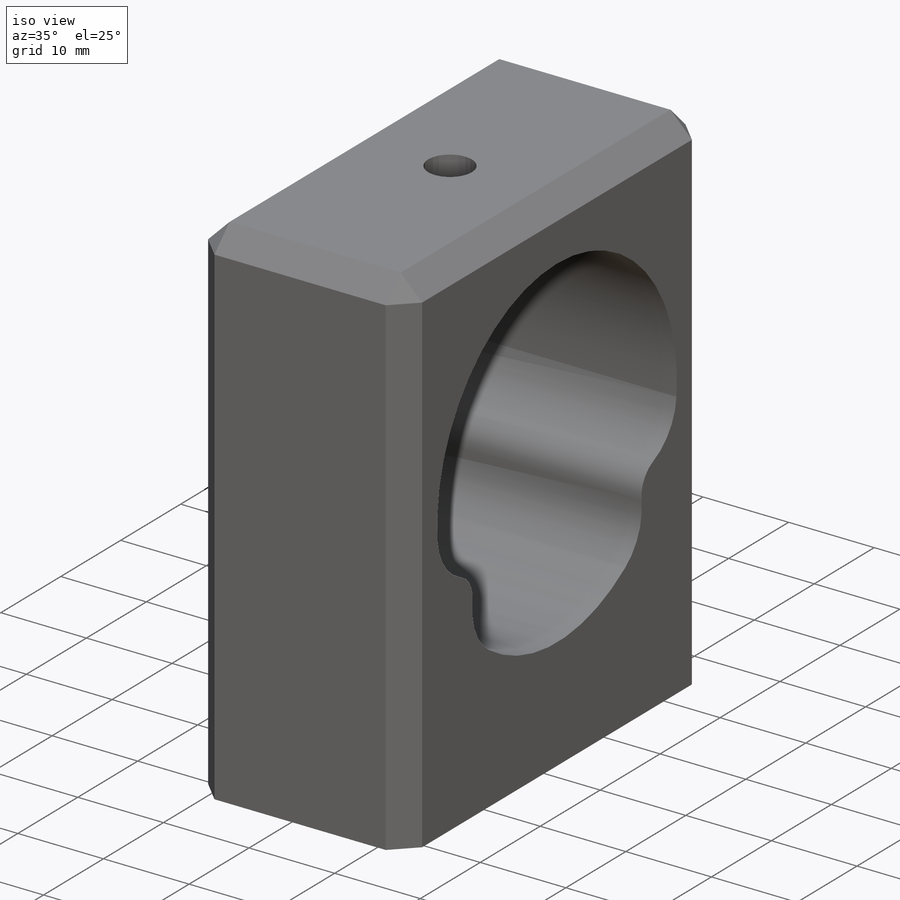
[diagram: iso view]
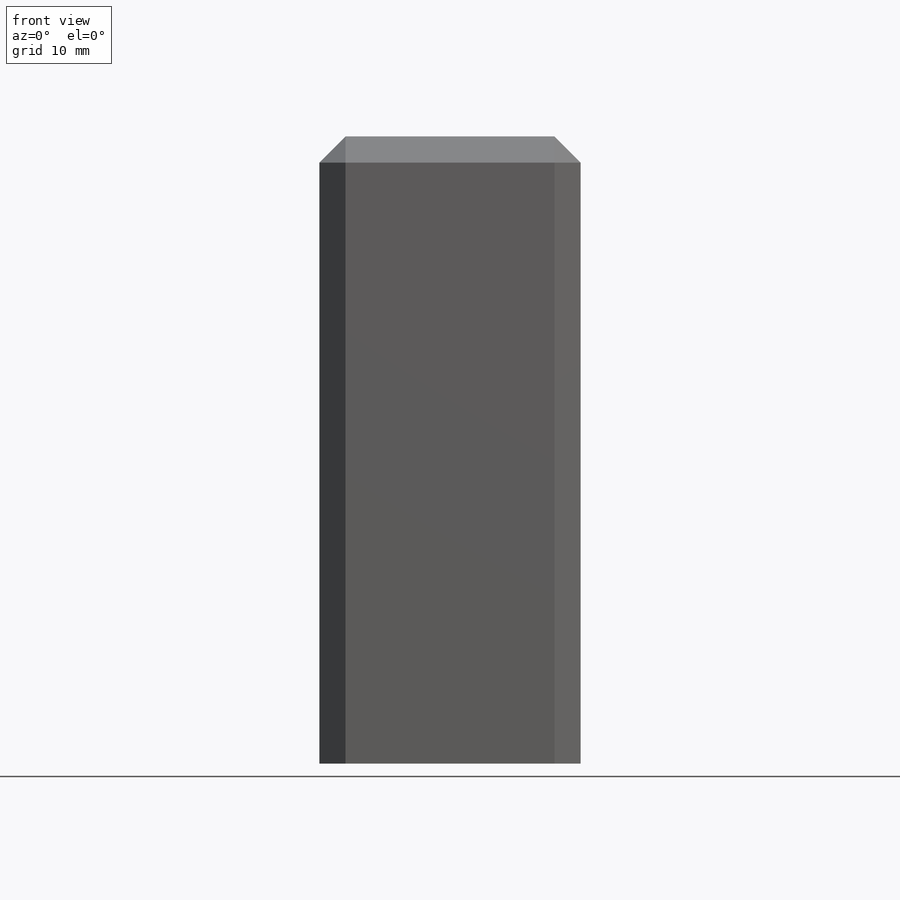
[diagram: front view]
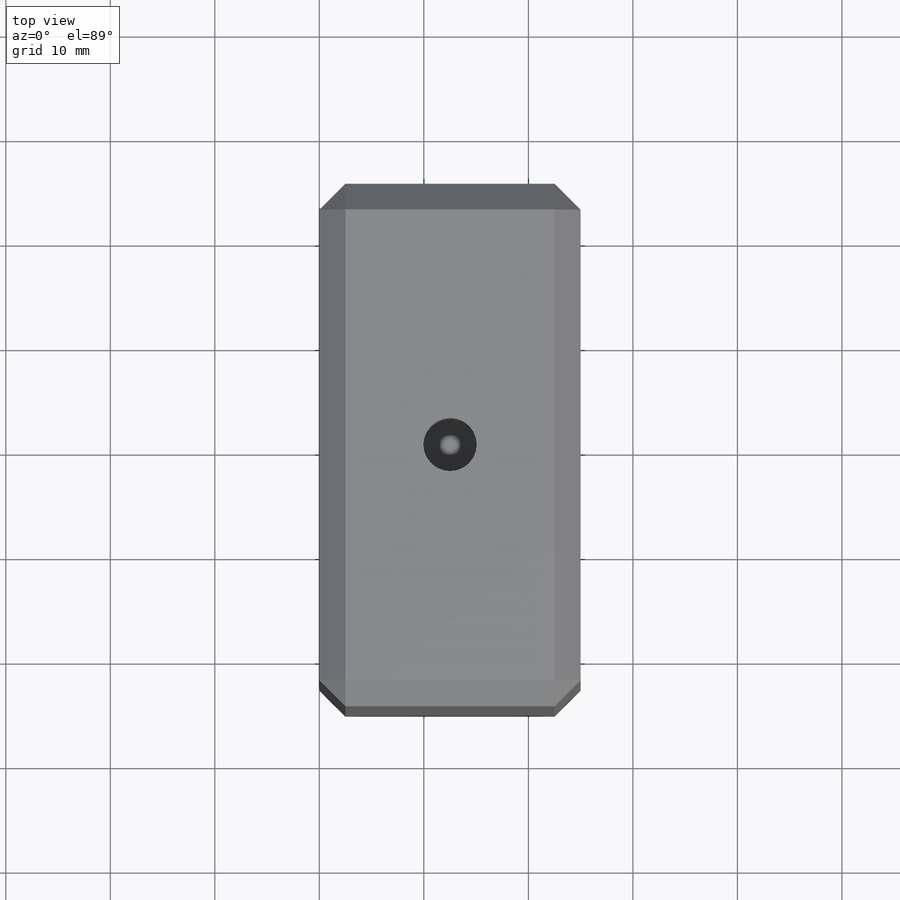
[diagram: top view]
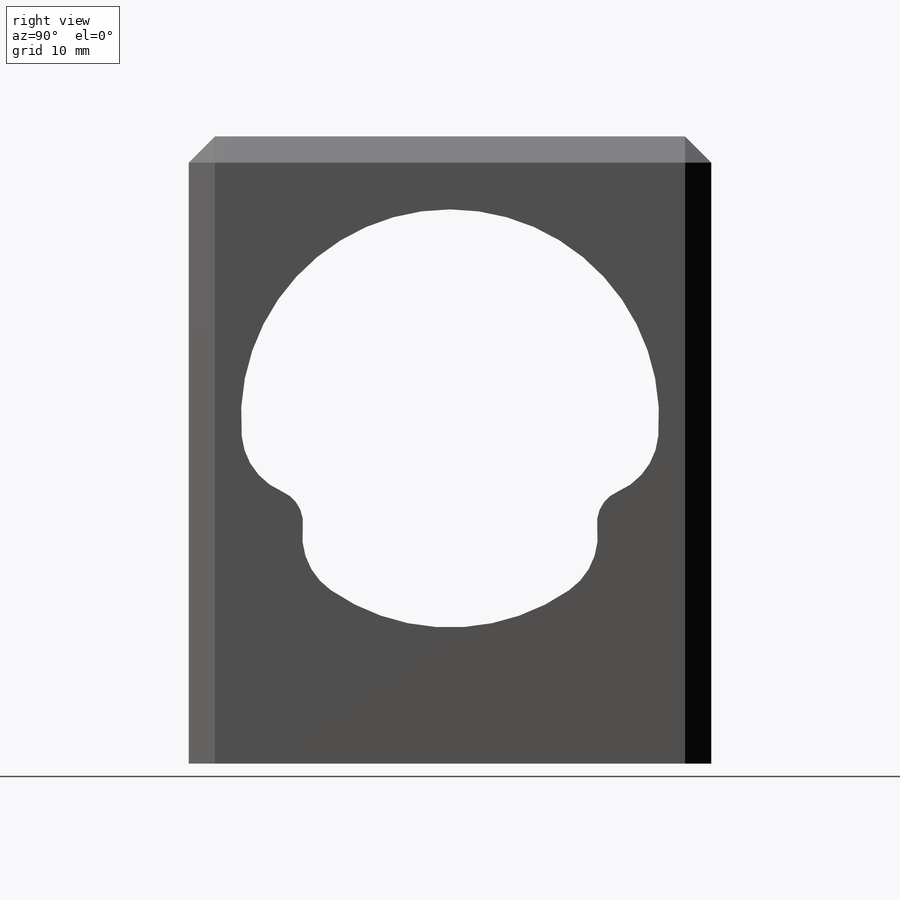
[diagram: right view]
SOLIDWORKS PART (.sldprt)
format: sldprt  version: not decoded by parser v0  size: 287,232 bytes
history: native  units: mm
features: sketch x7, hole x2, material x1, extrude x1, chamfer x1, thread x1 (+13 scaffold rows collapsed)
feature tree (26):
  scaffold x13  (default folders/planes/origin — collapsed)
  material  "Material <not specified>"
  sketch  "Sketch1"  dims[c1.D3=40.0mm c1.D5=33.48mm c1.D8=6.35mm c1.D9=6.35mm c1.D10=6.35mm c1.D11=6.35mm c1.D1=50.0mm c1.D2=60.0mm c1.D4=33.02mm c1.D6=75.0mm c2.D6=120.0deg c2.D7=~12.988669mm c3.D7=120.0deg]
  extrude  "Boss-Extrude1"  Depth=25mm
  chamfer  "Chamfer1"  Distance=2.5mm Angle=45deg
  sketch  "Sketch2"
  hole  "1/4-20 Tapped Hole1"  Diameter=5.1054mm Depth=6.98mm
  sketch  "3DSketch1"
  sketch  "Sketch3"  dims[hole-wizard template sketch: 60 standard entries collapsed; hole parameters kept: c18.Thru Tap Drill Depth=6.98mm]
  thread  "Hole Thread1"  Diameter=6.35mm  [1 undecoded]
  sketch  "Sketch4"  dims[D1=10.0mm D2=10.0mm]
  hole  "1/4 (0.25) Diameter Hole1"  Diameter=6.35mm Depth=10mm
  sketch  "3DSketch2"
  sketch  "Sketch6"  dims[hole-wizard template sketch: 47 standard entries collapsed; hole parameters kept: c15.Hole Depth=10.0mm c15.D3=~14.816244mm c15.Drill Angle=118.0deg]
decode coverage: 9 of 12 modeling features carry decoded parameters
note: ~ marks probable driven/reference dimensions
note: 1 parameter value undecoded
note: suppression state not decoded; provenance and decode notes live in map.json
